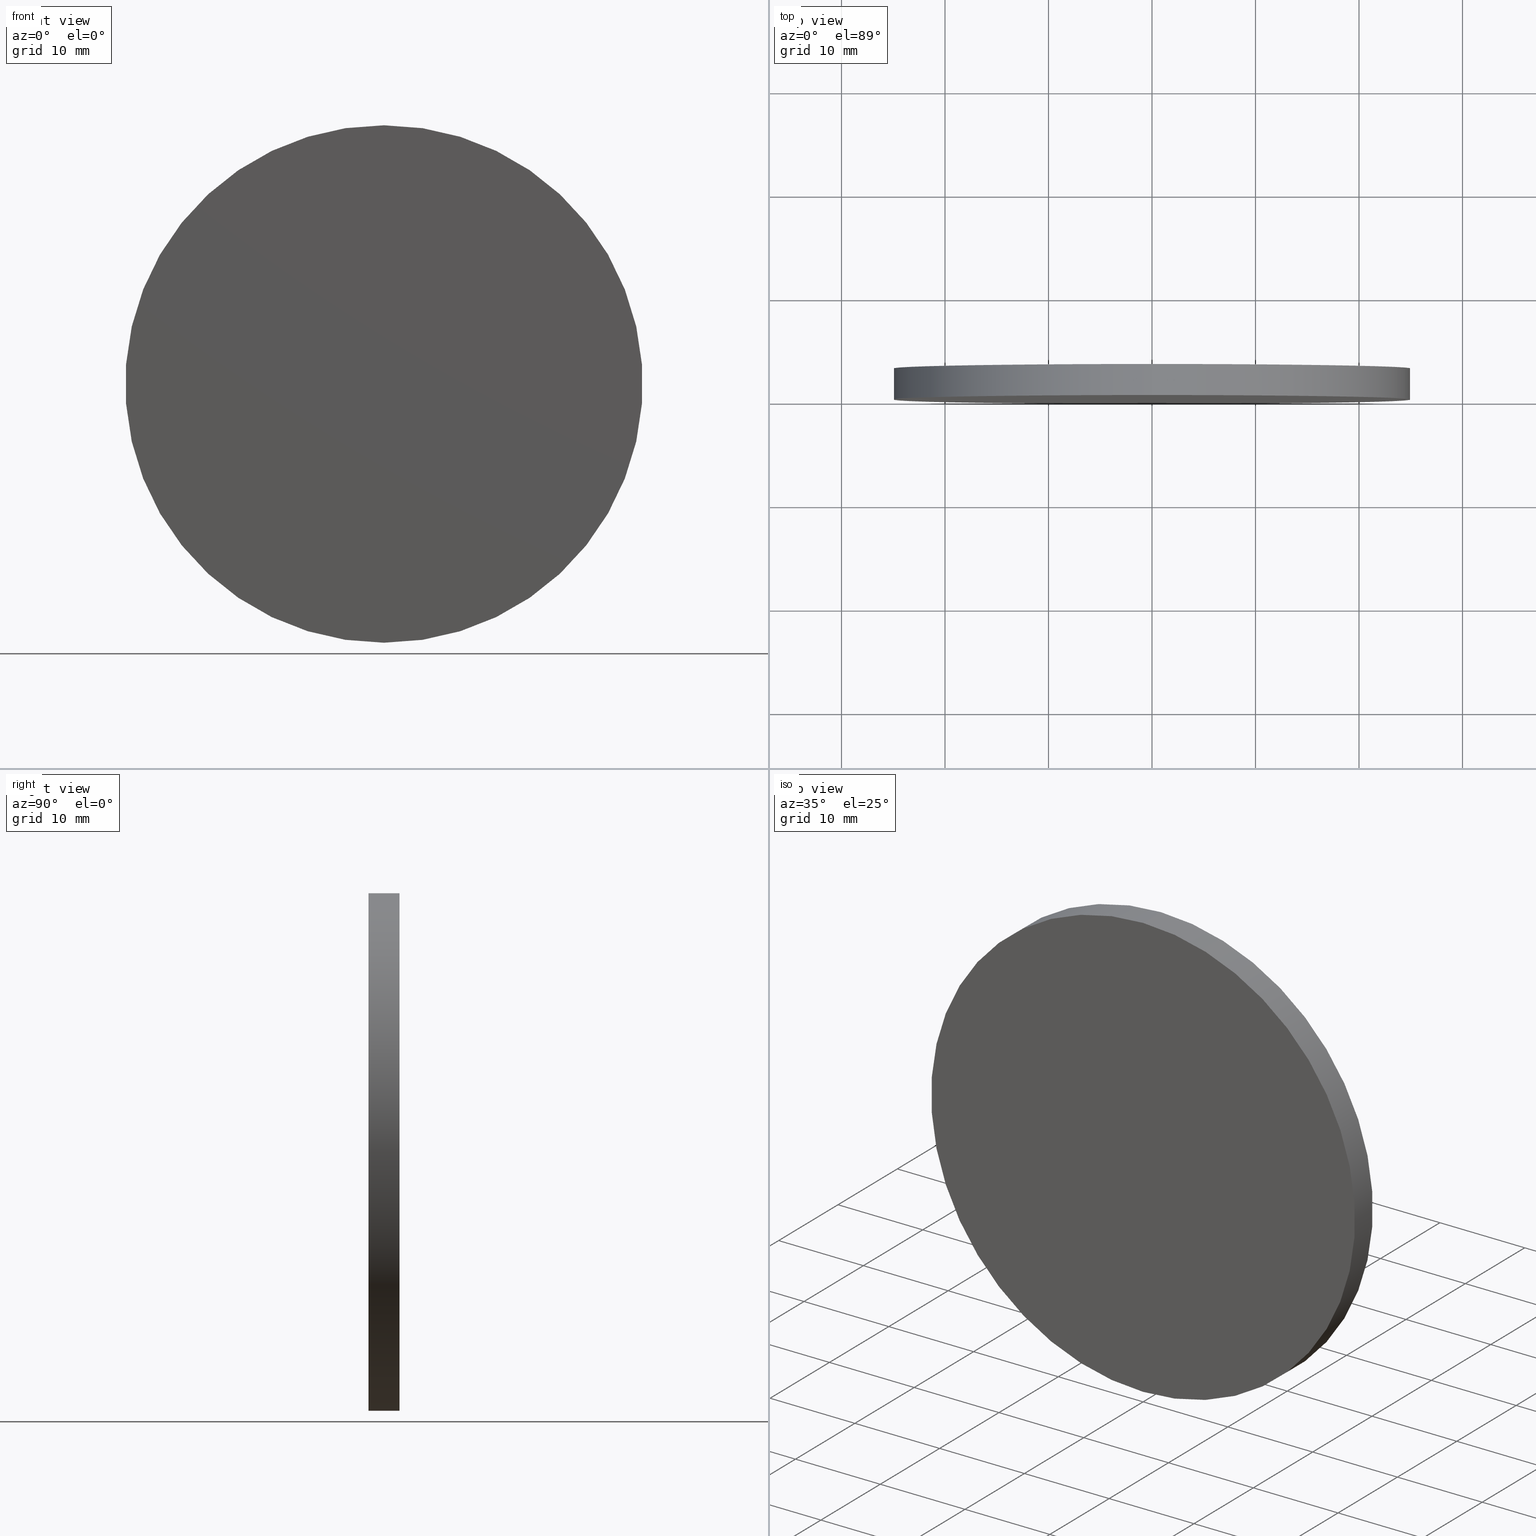
[diagram: canonical four-view strip — front | top / right | iso, engineering-drawing reading convention]
A machine part, canonical four-view strip (front | top / right | iso — engineering-drawing reading convention). The complete STEP part file that produces these views, byte-faithful:
ISO-10303-21;
HEADER;
FILE_DESCRIPTION (( 'STEP AP214' ),
    '1' );
FILE_NAME ('345506.STEP',
    '2019-08-12T03:44:19',
    ( 'user' ),
    ( '΢���й�' ),
    'SwSTEP 2.0',
    'SolidWorks 2016',
    '' );
FILE_SCHEMA (( 'AUTOMOTIVE_DESIGN' ));
ENDSEC;

DATA;
#1 = MANIFOLD_SOLID_BREP ( '͹̨-����1', #25 ) ;
#2 = CARTESIAN_POINT ( 'NONE',  ( 0.0000000000000000000, 3.000000000000000000, -25.00000000000000000 ) ) ;
#3 = ADVANCED_FACE ( 'NONE', ( #138 ), #136, .F. ) ;
#4 = SURFACE_SIDE_STYLE ('',( #57 ) ) ;
#5 =( GEOMETRIC_REPRESENTATION_CONTEXT ( 3 ) GLOBAL_UNCERTAINTY_ASSIGNED_CONTEXT ( ( #112 ) ) GLOBAL_UNIT_ASSIGNED_CONTEXT ( ( #81, #27, #131 ) ) REPRESENTATION_CONTEXT ( 'NONE', 'WORKASPACE' ) );
#6 = FILL_AREA_STYLE ('',( #124 ) ) ;
#7 = APPLICATION_PROTOCOL_DEFINITION ( 'draft international standard', 'automotive_design', 1998, #70 ) ;
#8 = DIRECTION ( 'NONE',  ( 0.0000000000000000000, 0.0000000000000000000, -1.000000000000000000 ) ) ;
#9 = CARTESIAN_POINT ( 'NONE',  ( 0.0000000000000000000, 3.000000000000000000, 0.0000000000000000000 ) ) ;
#10 = ORIENTED_EDGE ( 'NONE', *, *, #24, .F. ) ;
#11 = FACE_OUTER_BOUND ( 'NONE', #61, .T. ) ;
#12 = ORIENTED_EDGE ( 'NONE', *, *, #94, .F. ) ;
#13 = DIRECTION ( 'NONE',  ( 0.0000000000000000000, 1.000000000000000000, 0.0000000000000000000 ) ) ;
#14 = STYLED_ITEM ( 'NONE', ( #84 ), #1 ) ;
#15 = LINE ( 'NONE', #29, #69 ) ;
#16 = CARTESIAN_POINT ( 'NONE',  ( 0.0000000000000000000, 3.000000000000000000, -25.00000000000000000 ) ) ;
#17 = EDGE_CURVE ( 'NONE', #23, #21, #73, .T. ) ;
#18 = VERTEX_POINT ( 'NONE', #83 ) ;
#19 = PLANE ( 'NONE',  #82 ) ;
#20 = DIRECTION ( 'NONE',  ( 0.0000000000000000000, 1.000000000000000000, 0.0000000000000000000 ) ) ;
#21 = VERTEX_POINT ( 'NONE', #2 ) ;
#22 = CARTESIAN_POINT ( 'NONE',  ( 0.0000000000000000000, 3.000000000000000000, 0.0000000000000000000 ) ) ;
#23 = VERTEX_POINT ( 'NONE', #109 ) ;
#24 = EDGE_CURVE ( 'NONE', #77, #18, #135, .T. ) ;
#25 = CLOSED_SHELL ( 'NONE', ( #86, #98, #42, #3 ) ) ;
#26 = PRESENTATION_STYLE_ASSIGNMENT (( #129 ) ) ;
#27 =( NAMED_UNIT ( * ) PLANE_ANGLE_UNIT ( ) SI_UNIT ( $, .RADIAN. ) );
#28 = EDGE_CURVE ( 'NONE', #18, #77, #105, .T. ) ;
#29 = CARTESIAN_POINT ( 'NONE',  ( 3.061616997868383000E-015, 3.000000000000000000, 25.00000000000000000 ) ) ;
#30 = DIRECTION ( 'NONE',  ( 0.0000000000000000000, 0.0000000000000000000, -1.000000000000000000 ) ) ;
#31 = EDGE_LOOP ( 'NONE', ( #89, #10 ) ) ;
#32 = DIRECTION ( 'NONE',  ( 0.0000000000000000000, 0.0000000000000000000, 1.000000000000000000 ) ) ;
#33 = EDGE_CURVE ( 'NONE', #23, #77, #15, .T. ) ;
#34 =( NAMED_UNIT ( * ) SI_UNIT ( $, .STERADIAN. ) SOLID_ANGLE_UNIT ( ) );
#35 = AXIS2_PLACEMENT_3D ( 'NONE', #95, #106, #140 ) ;
#36 = VECTOR ( 'NONE', #68, 1000.000000000000000 ) ;
#37 = CARTESIAN_POINT ( 'NONE',  ( 3.061616997868383000E-015, 0.0000000000000000000, 25.00000000000000000 ) ) ;
#38 = AXIS2_PLACEMENT_3D ( 'NONE', #22, #20, #39 ) ;
#39 = DIRECTION ( 'NONE',  ( 0.0000000000000000000, 0.0000000000000000000, 1.000000000000000000 ) ) ;
#40 = PRODUCT_DEFINITION ( 'δ֪', '', #47, #133 ) ;
#41 = FACE_OUTER_BOUND ( 'NONE', #90, .T. ) ;
#42 = ADVANCED_FACE ( 'NONE', ( #11 ), #19, .T. ) ;
#43 = ORIENTED_EDGE ( 'NONE', *, *, #28, .T. ) ;
#44 = FACE_OUTER_BOUND ( 'NONE', #55, .T. ) ;
#45 = ORIENTED_EDGE ( 'NONE', *, *, #33, .F. ) ;
#46 = AXIS2_PLACEMENT_3D ( 'NONE', #137, #72, #85 ) ;
#47 = PRODUCT_DEFINITION_FORMATION_WITH_SPECIFIED_SOURCE ( '�κ�', '', #120, .NOT_KNOWN. ) ;
#48 = DIRECTION ( 'NONE',  ( 0.0000000000000000000, 1.000000000000000000, 0.0000000000000000000 ) ) ;
#49 = DIRECTION ( 'NONE',  ( 0.0000000000000000000, 0.0000000000000000000, 1.000000000000000000 ) ) ;
#50 = SURFACE_STYLE_FILL_AREA ( #6 ) ;
#51 = DIRECTION ( 'NONE',  ( -0.0000000000000000000, -1.000000000000000000, -0.0000000000000000000 ) ) ;
#52 = ORIENTED_EDGE ( 'NONE', *, *, #33, .T. ) ;
#53 = SURFACE_SIDE_STYLE ('',( #50 ) ) ;
#54 = AXIS2_PLACEMENT_3D ( 'NONE', #62, #48, #117 ) ;
#55 = EDGE_LOOP ( 'NONE', ( #123, #52, #64, #118 ) ) ;
#56 = PRODUCT_RELATED_PRODUCT_CATEGORY ( 'part', '', ( #120 ) ) ;
#57 = SURFACE_STYLE_FILL_AREA ( #107 ) ;
#58 = CARTESIAN_POINT ( 'NONE',  ( 0.0000000000000000000, 3.000000000000000000, 0.0000000000000000000 ) ) ;
#59 = ORIENTED_EDGE ( 'NONE', *, *, #103, .T. ) ;
#60 =( NAMED_UNIT ( * ) PLANE_ANGLE_UNIT ( ) SI_UNIT ( $, .RADIAN. ) );
#61 = EDGE_LOOP ( 'NONE', ( #121, #75 ) ) ;
#62 = CARTESIAN_POINT ( 'NONE',  ( 0.0000000000000000000, 0.0000000000000000000, 0.0000000000000000000 ) ) ;
#63 = AXIS2_PLACEMENT_3D ( 'NONE', #97, #74, #49 ) ;
#64 = ORIENTED_EDGE ( 'NONE', *, *, #24, .T. ) ;
#65 =( LENGTH_UNIT ( ) NAMED_UNIT ( * ) SI_UNIT ( .MILLI., .METRE. ) );
#66 = CYLINDRICAL_SURFACE ( 'NONE', #102, 25.00000000000000000 ) ;
#67 =( NAMED_UNIT ( * ) SI_UNIT ( $, .STERADIAN. ) SOLID_ANGLE_UNIT ( ) );
#68 = DIRECTION ( 'NONE',  ( -0.0000000000000000000, -1.000000000000000000, -0.0000000000000000000 ) ) ;
#69 = VECTOR ( 'NONE', #51, 1000.000000000000000 ) ;
#70 = APPLICATION_CONTEXT ( 'automotive_design' ) ;
#71 = PRODUCT_DEFINITION_SHAPE ( 'NONE', 'NONE',  #40 ) ;
#72 = DIRECTION ( 'NONE',  ( 0.0000000000000000000, 1.000000000000000000, 0.0000000000000000000 ) ) ;
#73 = CIRCLE ( 'NONE', #38, 25.00000000000000000 ) ;
#74 = DIRECTION ( 'NONE',  ( 0.0000000000000000000, 1.000000000000000000, 0.0000000000000000000 ) ) ;
#75 = ORIENTED_EDGE ( 'NONE', *, *, #17, .T. ) ;
#76 = PRESENTATION_LAYER_ASSIGNMENT (  '', '', ( #14 ) ) ;
#77 = VERTEX_POINT ( 'NONE', #37 ) ;
#78 = SURFACE_STYLE_USAGE ( .BOTH. , #53 ) ;
#79 = FILL_AREA_STYLE_COLOUR ( '', #87 ) ;
#80 = PRODUCT_CONTEXT ( 'NONE', #70, 'mechanical' ) ;
#81 =( LENGTH_UNIT ( ) NAMED_UNIT ( * ) SI_UNIT ( .MILLI., .METRE. ) );
#82 = AXIS2_PLACEMENT_3D ( 'NONE', #9, #13, #92 ) ;
#83 = CARTESIAN_POINT ( 'NONE',  ( 0.0000000000000000000, 0.0000000000000000000, -25.00000000000000000 ) ) ;
#84 = PRESENTATION_STYLE_ASSIGNMENT (( #78 ) ) ;
#85 = DIRECTION ( 'NONE',  ( 0.0000000000000000000, -0.0000000000000000000, 1.000000000000000000 ) ) ;
#86 = ADVANCED_FACE ( 'NONE', ( #44 ), #66, .T. ) ;
#87 = COLOUR_RGB ( '',1.000000000000000000, 1.000000000000000000, 1.000000000000000000 ) ;
#88 = UNCERTAINTY_MEASURE_WITH_UNIT (LENGTH_MEASURE( 1.000000000000000100E-005 ), #100, 'distance_accuracy_value', 'NONE');
#89 = ORIENTED_EDGE ( 'NONE', *, *, #28, .F. ) ;
#90 = EDGE_LOOP ( 'NONE', ( #45, #12, #59, #43 ) ) ;
#91 = DIRECTION ( 'NONE',  ( 0.0000000000000000000, 1.000000000000000000, 0.0000000000000000000 ) ) ;
#92 = DIRECTION ( 'NONE',  ( 0.0000000000000000000, -0.0000000000000000000, 1.000000000000000000 ) ) ;
#93 = AXIS2_PLACEMENT_3D ( 'NONE', #58, #91, #32 ) ;
#94 = EDGE_CURVE ( 'NONE', #21, #23, #99, .T. ) ;
#95 = CARTESIAN_POINT ( 'NONE',  ( 0.0000000000000000000, 0.0000000000000000000, 0.0000000000000000000 ) ) ;
#96 = MECHANICAL_DESIGN_GEOMETRIC_PRESENTATION_REPRESENTATION (  '', ( #14 ), #113 ) ;
#97 = CARTESIAN_POINT ( 'NONE',  ( 0.0000000000000000000, 0.0000000000000000000, 0.0000000000000000000 ) ) ;
#98 = ADVANCED_FACE ( 'NONE', ( #41 ), #125, .T. ) ;
#99 = CIRCLE ( 'NONE', #93, 25.00000000000000000 ) ;
#100 =( LENGTH_UNIT ( ) NAMED_UNIT ( * ) SI_UNIT ( .MILLI., .METRE. ) );
#101 = DIRECTION ( 'NONE',  ( -0.0000000000000000000, -1.000000000000000000, -0.0000000000000000000 ) ) ;
#102 = AXIS2_PLACEMENT_3D ( 'NONE', #119, #101, #30 ) ;
#103 = EDGE_CURVE ( 'NONE', #21, #18, #130, .T. ) ;
#104 = APPLICATION_PROTOCOL_DEFINITION ( 'draft international standard', 'automotive_design', 1998, #116 ) ;
#105 = CIRCLE ( 'NONE', #63, 25.00000000000000000 ) ;
#106 = DIRECTION ( 'NONE',  ( 0.0000000000000000000, 0.0000000000000000000, 1.000000000000000000 ) ) ;
#107 = FILL_AREA_STYLE ('',( #79 ) ) ;
#108 = SHAPE_DEFINITION_REPRESENTATION ( #71, #127 ) ;
#109 = CARTESIAN_POINT ( 'NONE',  ( 3.061616997868383000E-015, 3.000000000000000000, 25.00000000000000000 ) ) ;
#110 =( GEOMETRIC_REPRESENTATION_CONTEXT ( 3 ) GLOBAL_UNCERTAINTY_ASSIGNED_CONTEXT ( ( #88 ) ) GLOBAL_UNIT_ASSIGNED_CONTEXT ( ( #100, #60, #67 ) ) REPRESENTATION_CONTEXT ( 'NONE', 'WORKASPACE' ) );
#111 =( NAMED_UNIT ( * ) PLANE_ANGLE_UNIT ( ) SI_UNIT ( $, .RADIAN. ) );
#112 = UNCERTAINTY_MEASURE_WITH_UNIT (LENGTH_MEASURE( 1.000000000000000100E-005 ), #81, 'distance_accuracy_value', 'NONE');
#113 =( GEOMETRIC_REPRESENTATION_CONTEXT ( 3 ) GLOBAL_UNCERTAINTY_ASSIGNED_CONTEXT ( ( #128 ) ) GLOBAL_UNIT_ASSIGNED_CONTEXT ( ( #65, #111, #34 ) ) REPRESENTATION_CONTEXT ( 'NONE', 'WORKASPACE' ) );
#114 = COLOUR_RGB ( '',1.000000000000000000, 1.000000000000000000, 1.000000000000000000 ) ;
#115 = AXIS2_PLACEMENT_3D ( 'NONE', #126, #134, #8 ) ;
#116 = APPLICATION_CONTEXT ( 'automotive_design' ) ;
#117 = DIRECTION ( 'NONE',  ( 0.0000000000000000000, 0.0000000000000000000, 1.000000000000000000 ) ) ;
#118 = ORIENTED_EDGE ( 'NONE', *, *, #103, .F. ) ;
#119 = CARTESIAN_POINT ( 'NONE',  ( 0.0000000000000000000, 3.000000000000000000, 0.0000000000000000000 ) ) ;
#120 = PRODUCT ( '345506', '345506', '', ( #80 ) ) ;
#121 = ORIENTED_EDGE ( 'NONE', *, *, #94, .T. ) ;
#122 = STYLED_ITEM ( 'NONE', ( #26 ), #127 ) ;
#123 = ORIENTED_EDGE ( 'NONE', *, *, #17, .F. ) ;
#124 = FILL_AREA_STYLE_COLOUR ( '', #114 ) ;
#125 = CYLINDRICAL_SURFACE ( 'NONE', #115, 25.00000000000000000 ) ;
#126 = CARTESIAN_POINT ( 'NONE',  ( 0.0000000000000000000, 3.000000000000000000, 0.0000000000000000000 ) ) ;
#127 = ADVANCED_BREP_SHAPE_REPRESENTATION ( '345506', ( #1, #35 ), #110 ) ;
#128 = UNCERTAINTY_MEASURE_WITH_UNIT (LENGTH_MEASURE( 1.000000000000000100E-005 ), #65, 'distance_accuracy_value', 'NONE');
#129 = SURFACE_STYLE_USAGE ( .BOTH. , #4 ) ;
#130 = LINE ( 'NONE', #16, #36 ) ;
#131 =( NAMED_UNIT ( * ) SI_UNIT ( $, .STERADIAN. ) SOLID_ANGLE_UNIT ( ) );
#132 = PRESENTATION_LAYER_ASSIGNMENT (  '', '', ( #122 ) ) ;
#133 = PRODUCT_DEFINITION_CONTEXT ( 'detailed design', #116, 'design' ) ;
#134 = DIRECTION ( 'NONE',  ( -0.0000000000000000000, -1.000000000000000000, -0.0000000000000000000 ) ) ;
#135 = CIRCLE ( 'NONE', #54, 25.00000000000000000 ) ;
#136 = PLANE ( 'NONE',  #46 ) ;
#137 = CARTESIAN_POINT ( 'NONE',  ( 0.0000000000000000000, 0.0000000000000000000, 0.0000000000000000000 ) ) ;
#138 = FACE_OUTER_BOUND ( 'NONE', #31, .T. ) ;
#139 = MECHANICAL_DESIGN_GEOMETRIC_PRESENTATION_REPRESENTATION (  '', ( #122 ), #5 ) ;
#140 = DIRECTION ( 'NONE',  ( 1.000000000000000000, 0.0000000000000000000, 0.0000000000000000000 ) ) ;
ENDSEC;
END-ISO-10303-21;
